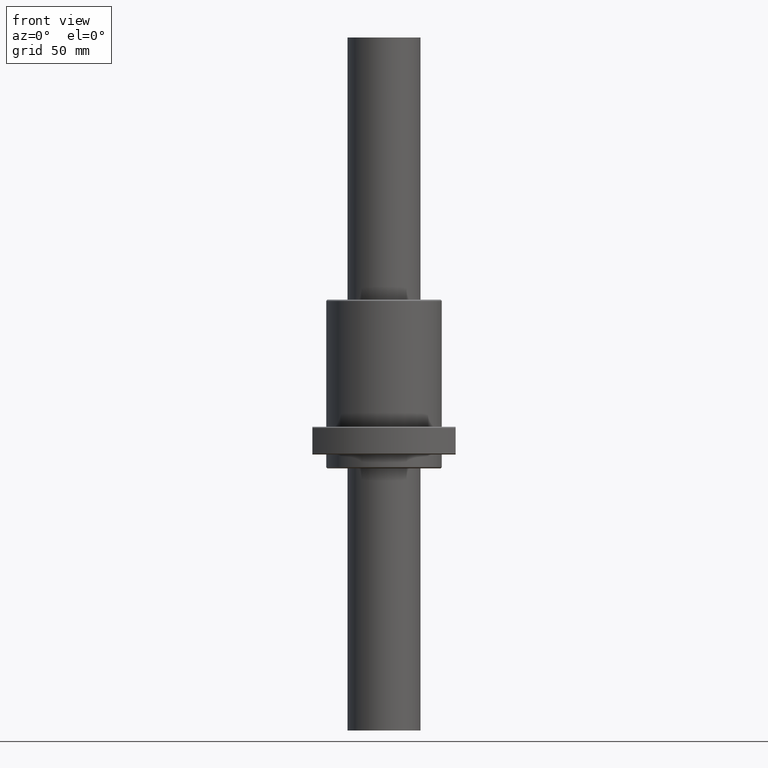
[diagram: clean part render]
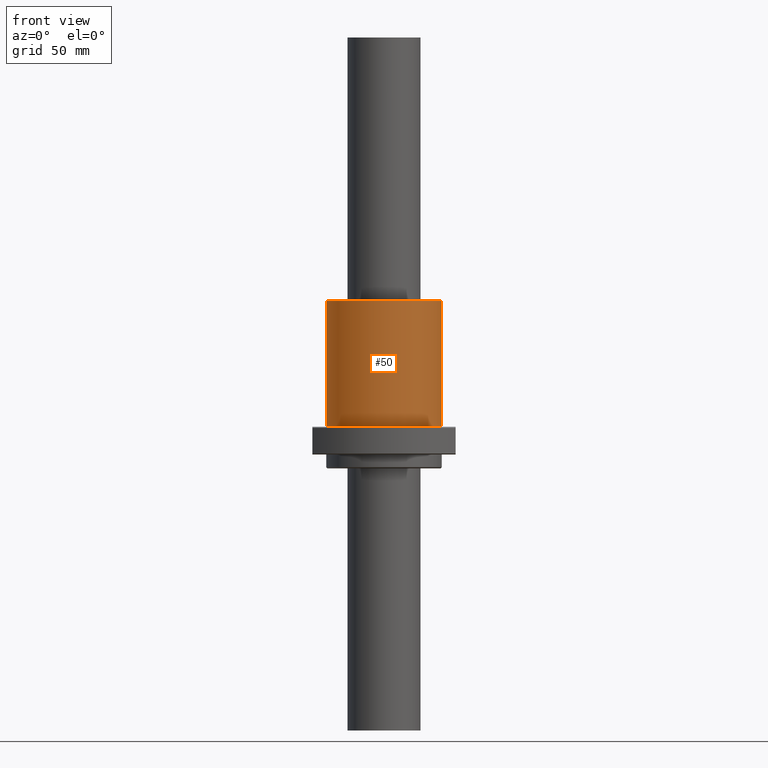
[diagram: same view with one face highlighted and labeled with its STEP entity id]
A machine part, front view. The second image highlights one B-rep face of the part: STEP entity #50.
In plain terms, the highlighted cylindrical surface (partial cylindrical patch) has radius 25 mm, axis along (0, 0, -1).
Its self-contained STEP definition (entity closure, byte-faithful):
#50 = ADVANCED_FACE ( 'NONE', ( #753 ), #1819, .T. ) ;
#69 = CIRCLE ( 'NONE', #1679, 24.99999610000000100 ) ;
#87 = VERTEX_POINT ( 'NONE', #648 ) ;
#117 = ORIENTED_EDGE ( 'NONE', *, *, #1271, .T. ) ;
#119 = DIRECTION ( 'NONE',  ( 1.000000000000000000, 0.0000000000000000000, 0.0000000000000000000 ) ) ;
#171 = CARTESIAN_POINT ( 'NONE',  ( -24.99999610000000100, 3.061616520256131400E-015, -17.99999400000000400 ) ) ;
#178 = CIRCLE ( 'NONE', #1355, 24.99999610000000100 ) ;
#209 = VERTEX_POINT ( 'NONE', #1714 ) ;
#246 = DIRECTION ( 'NONE',  ( 0.0000000000000000000, 0.0000000000000000000, 1.000000000000000000 ) ) ;
#276 = ORIENTED_EDGE ( 'NONE', *, *, #1550, .F. ) ;
#298 = VECTOR ( 'NONE', #246, 1000.000000000000000 ) ;
#450 = AXIS2_PLACEMENT_3D ( 'NONE', #1518, #526, #1630 ) ;
#526 = DIRECTION ( 'NONE',  ( 0.0000000000000000000, 0.0000000000000000000, 1.000000000000000000 ) ) ;
#635 = CARTESIAN_POINT ( 'NONE',  ( -24.99999610000000100, 3.061616520256131400E-015, -72.50000029999999600 ) ) ;
#648 = CARTESIAN_POINT ( 'NONE',  ( 24.99999610000000100, 0.0000000000000000000, -17.99999400000000400 ) ) ;
#665 = ORIENTED_EDGE ( 'NONE', *, *, #1166, .F. ) ;
#675 = VERTEX_POINT ( 'NONE', #772 ) ;
#703 = DIRECTION ( 'NONE',  ( 0.0000000000000000000, 0.0000000000000000000, 1.000000000000000000 ) ) ;
#742 = LINE ( 'NONE', #1221, #1445 ) ;
#753 = FACE_OUTER_BOUND ( 'NONE', #1285, .T. ) ;
#772 = CARTESIAN_POINT ( 'NONE',  ( 24.99999610000000100, 0.0000000000000000000, -72.50000029999999600 ) ) ;
#987 = LINE ( 'NONE', #635, #298 ) ;
#1166 = EDGE_CURVE ( 'NONE', #209, #1454, #987, .T. ) ;
#1205 = CARTESIAN_POINT ( 'NONE',  ( 0.0000000000000000000, 0.0000000000000000000, -72.50000029999999600 ) ) ;
#1221 = CARTESIAN_POINT ( 'NONE',  ( 24.99999610000000100, 0.0000000000000000000, -72.50000029999999600 ) ) ;
#1271 = EDGE_CURVE ( 'NONE', #675, #87, #742, .T. ) ;
#1285 = EDGE_LOOP ( 'NONE', ( #665, #276, #117, #1373 ) ) ;
#1355 = AXIS2_PLACEMENT_3D ( 'NONE', #1205, #1407, #1623 ) ;
#1373 = ORIENTED_EDGE ( 'NONE', *, *, #1787, .T. ) ;
#1407 = DIRECTION ( 'NONE',  ( -0.0000000000000000000, -0.0000000000000000000, -1.000000000000000000 ) ) ;
#1445 = VECTOR ( 'NONE', #703, 1000.000000000000000 ) ;
#1454 = VERTEX_POINT ( 'NONE', #171 ) ;
#1518 = CARTESIAN_POINT ( 'NONE',  ( 0.0000000000000000000, 0.0000000000000000000, -72.50000029999999600 ) ) ;
#1525 = CARTESIAN_POINT ( 'NONE',  ( 0.0000000000000000000, 0.0000000000000000000, -17.99999400000000400 ) ) ;
#1550 = EDGE_CURVE ( 'NONE', #675, #209, #178, .T. ) ;
#1623 = DIRECTION ( 'NONE',  ( 1.000000000000000000, 0.0000000000000000000, 0.0000000000000000000 ) ) ;
#1630 = DIRECTION ( 'NONE',  ( 1.000000000000000000, 0.0000000000000000000, 0.0000000000000000000 ) ) ;
#1679 = AXIS2_PLACEMENT_3D ( 'NONE', #1525, #1767, #119 ) ;
#1714 = CARTESIAN_POINT ( 'NONE',  ( -24.99999610000000100, 3.061616520256131400E-015, -72.50000029999999600 ) ) ;
#1767 = DIRECTION ( 'NONE',  ( -0.0000000000000000000, -0.0000000000000000000, -1.000000000000000000 ) ) ;
#1787 = EDGE_CURVE ( 'NONE', #87, #1454, #69, .T. ) ;
#1819 = CYLINDRICAL_SURFACE ( 'NONE', #450, 24.99999610000000100 ) ;